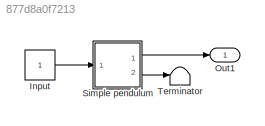
MODEL slx_877d8a0f7213
KIND model
WORKSPACE source: MAT-file member
WORKSPACE par = [2.32143588587 1.10554303073 9.72701226611 0.702090686836]
BLOCK [Constant] Input
BLOCK [Outport] Out1
  IconDisplay = Port number
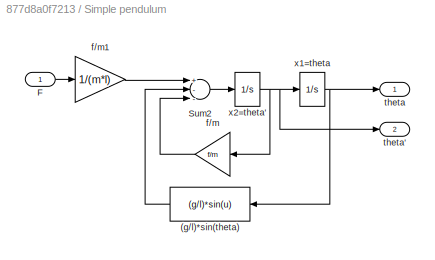
BLOCK [SubSystem] Simple pendulum
  FunctionWithSeparateData = off
  MaskHideContents = off
  MinAlgLoopOccurrences = off
  Opaque = off
  Ports = [1, 2]
  PropExecContextOutsideSubsystem = off
  RTWSystemCode = Auto
  RequestExecContextInheritance = off
BLOCK [Fcn] Simple pendulum/(g//l)*sin(theta)
  Expr = (g/l)*sin(u)
BLOCK [Inport] Simple pendulum/F
  IconDisplay = Port number
BLOCK [Sum] Simple pendulum/Sum2
  Inputs = +--
  Ports = [3, 1]
BLOCK [Gain] Simple pendulum/f//m
  Gain = f/m
BLOCK [Gain] Simple pendulum/f//m1
  Gain = 1/(m*l)
BLOCK [Outport] Simple pendulum/theta
  IconDisplay = Port number
BLOCK [Outport] Simple pendulum/theta'
  IconDisplay = Port number
  Port = 2
BLOCK [Integrator] Simple pendulum/x1=theta
  InitialCondition = x0(1)
  Ports = [1, 1]
BLOCK [Integrator] Simple pendulum/x2=theta'
  InitialCondition = x0(2)
  Ports = [1, 1]
BLOCK [Terminator] Terminator
LINE Input:1 -> Simple pendulum:1
LINE Simple pendulum/(g//l)*sin(theta):1 -> Simple pendulum/Sum2:2
LINE Simple pendulum/F:1 -> Simple pendulum/f//m1:1
LINE Simple pendulum/Sum2:1 -> Simple pendulum/x2=theta':1
LINE Simple pendulum/f//m1:1 -> Simple pendulum/Sum2:1
LINE Simple pendulum/f//m:1 -> Simple pendulum/Sum2:3
NET Simple pendulum/x1=theta:1 -> Simple pendulum/(g//l)*sin(theta):1, Simple pendulum/theta:1
NET Simple pendulum/x2=theta':1 -> Simple pendulum/f//m:1, Simple pendulum/theta':1, Simple pendulum/x1=theta:1
LINE Simple pendulum:1 -> Out1:1
LINE Simple pendulum:2 -> Terminator:1
note: NET lines group one-source signal fan-out (src -> all destinations, sorted); 1:1 wires keep LINE
